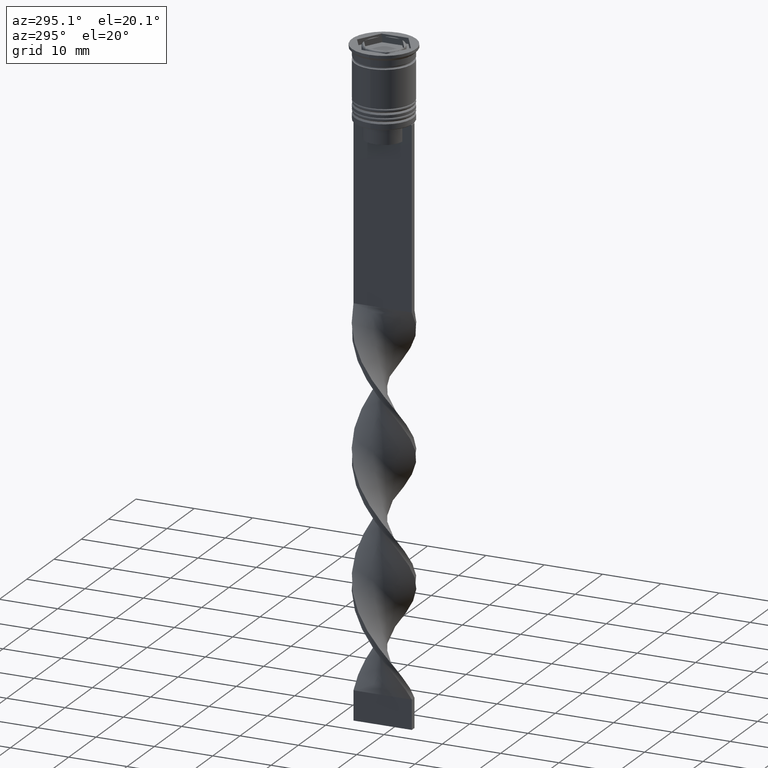
[diagram: clean part render]
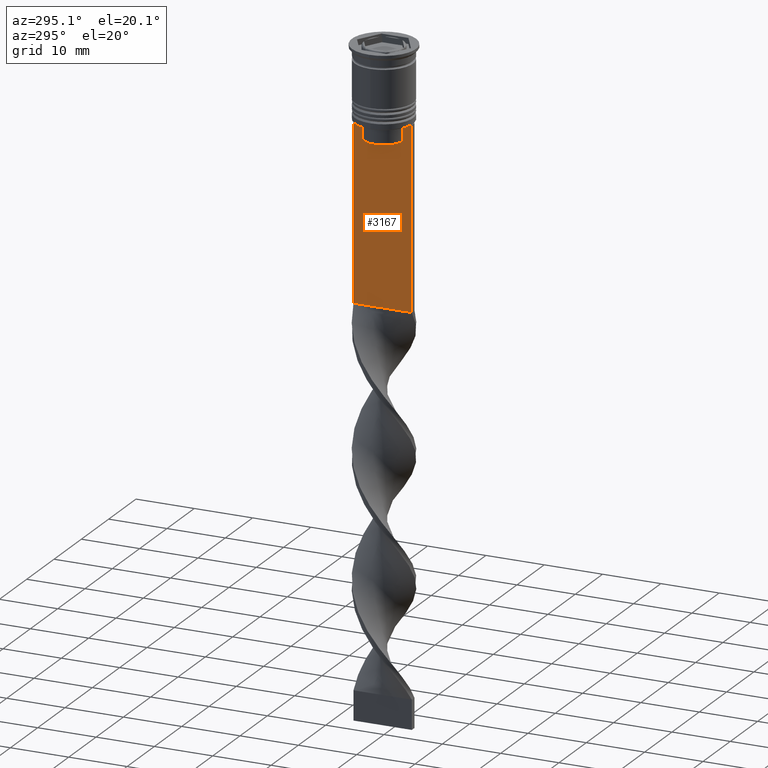
[diagram: same view with one face highlighted and labeled with its STEP entity id]
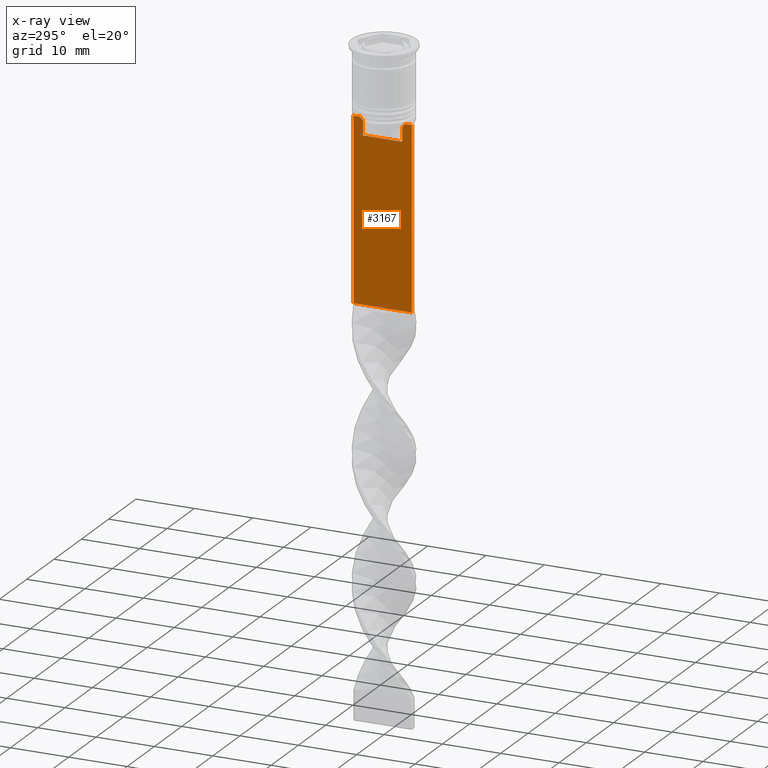
[diagram: x-ray of the same camera — body ghosted, the highlighted face saturated]
A machine part, auxiliary view. The second image highlights one B-rep face of the part: STEP entity #3167.
The next image is the same camera in x-ray: the body ghosted, the highlighted face saturated — about 0% of this face is hidden behind the body in this view.
In plain terms, the highlighted planar face has unit normal (-1, 0, 0).
Its self-contained STEP definition (entity closure, byte-faithful):
#33 = CARTESIAN_POINT ( 'NONE',  ( -0.5000000000000000000, 3.867815921162742754, -12.50000000000000000 ) ) ;
#153 = ORIENTED_EDGE ( 'NONE', *, *, #2194, .F. ) ;
#320 = VERTEX_POINT ( 'NONE', #2639 ) ;
#341 = LINE ( 'NONE', #3165, #1216 ) ;
#345 = CARTESIAN_POINT ( 'NONE',  ( -0.5000000000000000000, 3.399999999999998135, -15.50000000000000000 ) ) ;
#361 = CARTESIAN_POINT ( 'NONE',  ( -0.5000000000000000000, 3.699657965831574913, -12.66677026074361301 ) ) ;
#368 = LINE ( 'NONE', #1491, #3412 ) ;
#369 = DIRECTION ( 'NONE',  ( 0.000000000000000000, 1.000000000000000000, 0.000000000000000000 ) ) ;
#391 = B_SPLINE_CURVE_WITH_KNOTS ( 'NONE', 3,
 ( #3109, #807, #2835, #2216 ),
 .UNSPECIFIED., .F., .F.,
 ( 4, 4 ),
 ( 0.01632394437298965648, 0.01703543518243618576 ),
 .UNSPECIFIED. ) ;
#405 = CARTESIAN_POINT ( 'NONE',  ( -0.5000000000000000000, 3.363034344160045208, -13.00000000000000178 ) ) ;
#413 = LINE ( 'NONE', #1551, #2346 ) ;
#432 = EDGE_CURVE ( 'NONE', #2549, #1612, #2263, .T. ) ;
#528 = EDGE_LOOP ( 'NONE', ( #921, #1193, #614, #1651, #153, #3562, #1344, #3256, #2534, #1545, #992, #2057 ) ) ;
#596 = PLANE ( 'NONE',  #1991 ) ;
#614 = ORIENTED_EDGE ( 'NONE', *, *, #2013, .F. ) ;
#625 = DIRECTION ( 'NONE',  ( 0.000000000000000000, 0.000000000000000000, -1.000000000000000000 ) ) ;
#655 = CARTESIAN_POINT ( 'NONE',  ( -0.5000000000000000000, -4.874423042781575788, -12.50000000000000000 ) ) ;
#682 = EDGE_CURVE ( 'NONE', #1855, #1105, #368, .T. ) ;
#686 = CARTESIAN_POINT ( 'NONE',  ( -0.5000000000000000000, 4.874423042781575788, -12.50000000000000000 ) ) ;
#747 = EDGE_CURVE ( 'NONE', #1612, #320, #3324, .T. ) ;
#779 = VECTOR ( 'NONE', #2861, 1000.000000000000000 ) ;
#784 = VECTOR ( 'NONE', #3253, 1000.000000000000000 ) ;
#807 = CARTESIAN_POINT ( 'NONE',  ( -0.5000000000000000000, -3.531412985305424801, -12.83345201382502765 ) ) ;
#921 = ORIENTED_EDGE ( 'NONE', *, *, #1114, .F. ) ;
#922 = DIRECTION ( 'NONE',  ( 0.000000000000000000, 0.000000000000000000, 1.000000000000000000 ) ) ;
#992 = ORIENTED_EDGE ( 'NONE', *, *, #1179, .F. ) ;
#1105 = VERTEX_POINT ( 'NONE', #1776 ) ;
#1114 = EDGE_CURVE ( 'NONE', #1926, #1565, #1725, .T. ) ;
#1169 = VERTEX_POINT ( 'NONE', #686 ) ;
#1179 = EDGE_CURVE ( 'NONE', #2047, #2636, #3211, .T. ) ;
#1193 = ORIENTED_EDGE ( 'NONE', *, *, #1661, .F. ) ;
#1216 = VECTOR ( 'NONE', #1792, 1000.000000000000000 ) ;
#1232 = VERTEX_POINT ( 'NONE', #2391 ) ;
#1235 = LINE ( 'NONE', #1492, #2411 ) ;
#1344 = ORIENTED_EDGE ( 'NONE', *, *, #747, .F. ) ;
#1358 = CARTESIAN_POINT ( 'NONE',  ( -0.5000000000000000000, -3.363034344160045652, -15.50000000000000000 ) ) ;
#1372 = CARTESIAN_POINT ( 'NONE',  ( -0.5000000000000000000, 3.363034344160045208, -13.00000000000000178 ) ) ;
#1465 = CARTESIAN_POINT ( 'NONE',  ( -0.5000000000000000000, 3.363034344160045208, 0.000000000000000000 ) ) ;
#1467 = VERTEX_POINT ( 'NONE', #3632 ) ;
#1491 = CARTESIAN_POINT ( 'NONE',  ( -0.5000000000000000000, 5.000000000000000888, -2.450124378879110054 ) ) ;
#1492 = CARTESIAN_POINT ( 'NONE',  ( -0.5000000000000000000, -4.999999999999999112, -43.50000000000000000 ) ) ;
#1523 = EDGE_CURVE ( 'NONE', #1232, #2549, #391, .T. ) ;
#1545 = ORIENTED_EDGE ( 'NONE', *, *, #2808, .F. ) ;
#1551 = CARTESIAN_POINT ( 'NONE',  ( -0.5000000000000000000, -4.999999999999999112, -12.50000000000000000 ) ) ;
#1565 = VERTEX_POINT ( 'NONE', #1372 ) ;
#1612 = VERTEX_POINT ( 'NONE', #655 ) ;
#1651 = ORIENTED_EDGE ( 'NONE', *, *, #682, .T. ) ;
#1661 = EDGE_CURVE ( 'NONE', #1169, #1926, #413, .T. ) ;
#1725 = B_SPLINE_CURVE_WITH_KNOTS ( 'NONE', 3,
 ( #33, #361, #3490, #405 ),
 .UNSPECIFIED., .F., .F.,
 ( 4, 4 ),
 ( 0.006644825462451552783, 0.007355321358912435097 ),
 .UNSPECIFIED. ) ;
#1749 = DIRECTION ( 'NONE',  ( 0.000000000000000000, 0.000000000000000000, -1.000000000000000000 ) ) ;
#1776 = CARTESIAN_POINT ( 'NONE',  ( -0.5000000000000000000, 5.000000000000000888, -43.50000000000000000 ) ) ;
#1792 = DIRECTION ( 'NONE',  ( -0.000000000000000000, -0.000000000000000000, 1.000000000000000000 ) ) ;
#1855 = VERTEX_POINT ( 'NONE', #3342 ) ;
#1882 = CARTESIAN_POINT ( 'NONE',  ( -0.5000000000000000000, 3.867815921162742754, -12.50000000000000000 ) ) ;
#1926 = VERTEX_POINT ( 'NONE', #1882 ) ;
#1991 = AXIS2_PLACEMENT_3D ( 'NONE', #2030, #3481, #922 ) ;
#2013 = EDGE_CURVE ( 'NONE', #1855, #1169, #2269, .T. ) ;
#2030 = CARTESIAN_POINT ( 'NONE',  ( -0.5000000000000000000, -4.999999999999999112, -2.450124378879110054 ) ) ;
#2047 = VERTEX_POINT ( 'NONE', #2603 ) ;
#2055 = VECTOR ( 'NONE', #2249, 1000.000000000000000 ) ;
#2057 = ORIENTED_EDGE ( 'NONE', *, *, #2831, .F. ) ;
#2075 = CARTESIAN_POINT ( 'NONE',  ( -0.5000000000000000000, -4.999999999999999112, -2.450124378879110054 ) ) ;
#2192 = DIRECTION ( 'NONE',  ( 0.000000000000000000, -1.000000000000000000, 0.000000000000000000 ) ) ;
#2194 = EDGE_CURVE ( 'NONE', #1467, #1105, #1235, .T. ) ;
#2216 = CARTESIAN_POINT ( 'NONE',  ( -0.5000000000000000000, -3.867815921162742754, -12.50000000000000000 ) ) ;
#2249 = DIRECTION ( 'NONE',  ( 0.000000000000000000, -1.000000000000000000, 0.000000000000000000 ) ) ;
#2263 = LINE ( 'NONE', #2842, #779 ) ;
#2269 = LINE ( 'NONE', #2826, #2055 ) ;
#2346 = VECTOR ( 'NONE', #2683, 1000.000000000000000 ) ;
#2391 = CARTESIAN_POINT ( 'NONE',  ( -0.5000000000000000000, -3.363034344160045208, -13.00000000000000178 ) ) ;
#2411 = VECTOR ( 'NONE', #369, 1000.000000000000000 ) ;
#2534 = ORIENTED_EDGE ( 'NONE', *, *, #1523, .F. ) ;
#2538 = VECTOR ( 'NONE', #1749, 1000.000000000000000 ) ;
#2549 = VERTEX_POINT ( 'NONE', #3511 ) ;
#2603 = CARTESIAN_POINT ( 'NONE',  ( -0.5000000000000000000, 3.363034344160045652, -15.50000000000000000 ) ) ;
#2636 = VERTEX_POINT ( 'NONE', #1358 ) ;
#2637 = DIRECTION ( 'NONE',  ( 0.000000000000000000, 0.000000000000000000, -1.000000000000000000 ) ) ;
#2639 = CARTESIAN_POINT ( 'NONE',  ( -0.5000000000000000000, -4.999999999999999112, -12.50000000000000000 ) ) ;
#2683 = DIRECTION ( 'NONE',  ( 0.000000000000000000, -1.000000000000000000, 0.000000000000000000 ) ) ;
#2808 = EDGE_CURVE ( 'NONE', #2636, #1232, #341, .T. ) ;
#2826 = CARTESIAN_POINT ( 'NONE',  ( -0.5000000000000000000, -4.999999999999999112, -12.50000000000000000 ) ) ;
#2831 = EDGE_CURVE ( 'NONE', #1565, #2047, #3248, .T. ) ;
#2835 = CARTESIAN_POINT ( 'NONE',  ( -0.5000000000000000000, -3.699658232838647365, -12.66676999593996555 ) ) ;
#2842 = CARTESIAN_POINT ( 'NONE',  ( -0.5000000000000000000, -4.999999999999999112, -12.50000000000000000 ) ) ;
#2861 = DIRECTION ( 'NONE',  ( 0.000000000000000000, -1.000000000000000000, 0.000000000000000000 ) ) ;
#2927 = EDGE_CURVE ( 'NONE', #320, #1467, #3189, .T. ) ;
#3109 = CARTESIAN_POINT ( 'NONE',  ( -0.5000000000000000000, -3.363034344160045208, -13.00000000000000178 ) ) ;
#3162 = FACE_OUTER_BOUND ( 'NONE', #528, .T. ) ;
#3165 = CARTESIAN_POINT ( 'NONE',  ( -0.5000000000000000000, -3.363034344160045208, 0.000000000000000000 ) ) ;
#3167 = ADVANCED_FACE ( 'NONE', ( #3162 ), #596, .T. ) ;
#3189 = LINE ( 'NONE', #2075, #3663 ) ;
#3211 = LINE ( 'NONE', #345, #784 ) ;
#3248 = LINE ( 'NONE', #1465, #2538 ) ;
#3253 = DIRECTION ( 'NONE',  ( 0.000000000000000000, -1.000000000000000000, 0.000000000000000000 ) ) ;
#3256 = ORIENTED_EDGE ( 'NONE', *, *, #432, .F. ) ;
#3288 = CARTESIAN_POINT ( 'NONE',  ( -0.5000000000000000000, -4.999999999999999112, -12.50000000000000000 ) ) ;
#3295 = VECTOR ( 'NONE', #2192, 1000.000000000000000 ) ;
#3324 = LINE ( 'NONE', #3288, #3295 ) ;
#3342 = CARTESIAN_POINT ( 'NONE',  ( -0.5000000000000000000, 5.000000000000000888, -12.50000000000000000 ) ) ;
#3412 = VECTOR ( 'NONE', #2637, 1000.000000000000000 ) ;
#3481 = DIRECTION ( 'NONE',  ( -1.000000000000000000, 0.000000000000000000, 0.000000000000000000 ) ) ;
#3490 = CARTESIAN_POINT ( 'NONE',  ( -0.5000000000000000000, 3.531412678228260216, -12.83345231756357840 ) ) ;
#3511 = CARTESIAN_POINT ( 'NONE',  ( -0.5000000000000000000, -3.867815921162742754, -12.50000000000000000 ) ) ;
#3562 = ORIENTED_EDGE ( 'NONE', *, *, #2927, .F. ) ;
#3632 = CARTESIAN_POINT ( 'NONE',  ( -0.5000000000000000000, -4.999999999999999112, -43.50000000000000000 ) ) ;
#3663 = VECTOR ( 'NONE', #625, 1000.000000000000000 ) ;